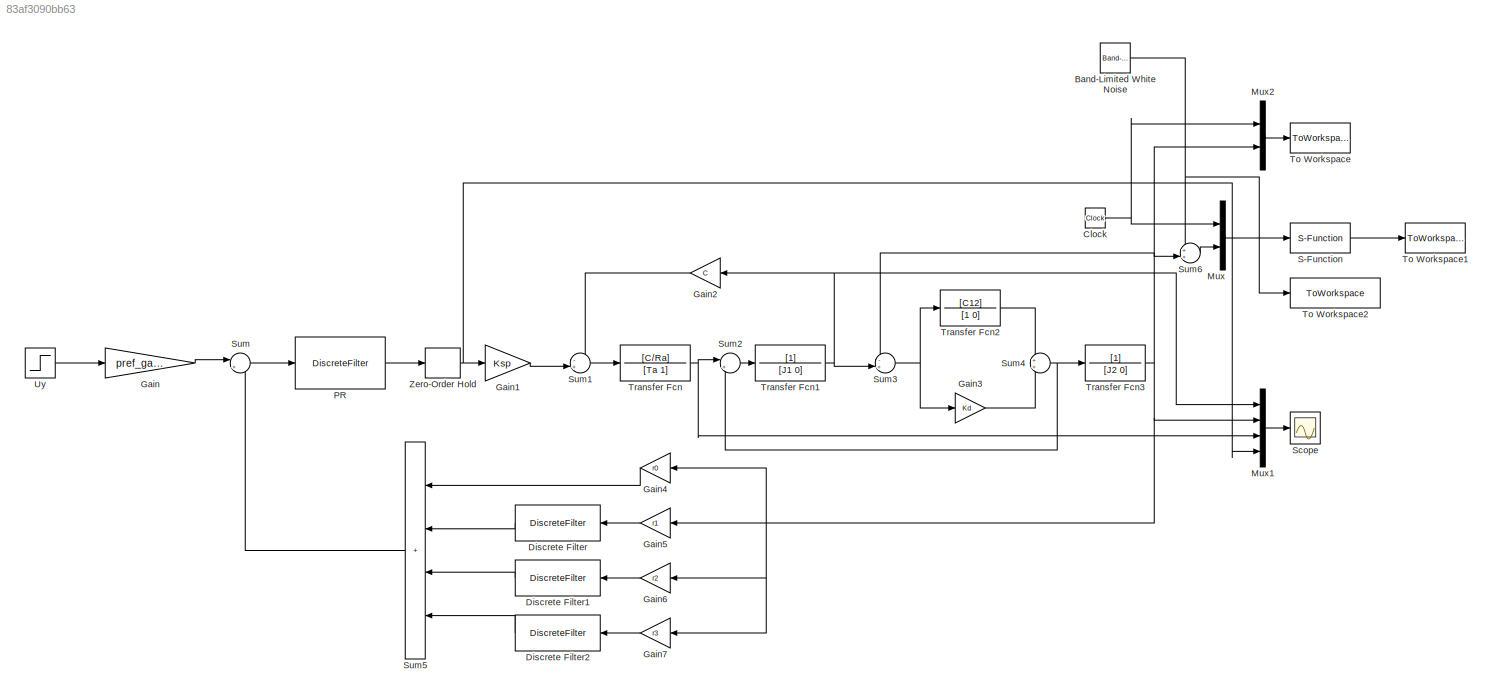
MODEL slx_83af3090bb63
KIND model
CONFIG AbsTol = auto
CONFIG EnableMultiTasking = off
CONFIG FixedStep = Tq
CONFIG MaxStep = auto
CONFIG MinStep = auto
CONFIG RelTol = 1e-3
CONFIG SampleTimeConstraint = Unconstrained
CONFIG SolverName = FixedStepAuto
CONFIG StartTime = 0.0
CONFIG StopTime = 3.0
BLOCK [Reference] Band-Limited White Noise  REF=simulink/Sources/Band-Limited
White Noise
  Ports = [0, 1]
  SourceBlock = simulink/Sources/Band-Limited\nWhite Noise
  SourceProductBaseCode = SL
  SourceType = Band-Limited White Noise.
BLOCK [Clock] Clock
  Decimation = 1
BLOCK [DiscreteFilter] Discrete Filter
  Denominator = [Tq]
  InputPortMap = u0
  Numerator = [1 -1]
  Ports = [1, 1]
  SampleTime = Tq
BLOCK [DiscreteFilter] Discrete Filter1
  Denominator = [Tq^2]
  InputPortMap = u0
  Numerator = [1 -2 1]
  Ports = [1, 1]
  SampleTime = Tq
BLOCK [DiscreteFilter] Discrete Filter2
  Denominator = [Tq^3]
  InputPortMap = u0
  Numerator = [1 -3 3 -1]
  Ports = [1, 1]
  SampleTime = Tq
BLOCK [Gain] Gain
  Gain = pref_gain
BLOCK [Gain] Gain1
  Gain = Ksp
BLOCK [Gain] Gain2
  Gain = C
BLOCK [Gain] Gain3
  Gain = Kd
BLOCK [Gain] Gain4
  Gain = r0
  SampleTime = Tq
BLOCK [Gain] Gain5
  Gain = r1
  SampleTime = Tq
BLOCK [Gain] Gain6
  Gain = r2
  SampleTime = Tq
BLOCK [Gain] Gain7
  Gain = r3
  SampleTime = Tq
BLOCK [Mux] Mux
  DisplayOption = bar
  Inputs = 2
  Ports = [2, 1]
BLOCK [Mux] Mux1
  DisplayOption = bar
  Ports = [4, 1]
BLOCK [Mux] Mux2
  DisplayOption = bar
  Inputs = 2
  Ports = [2, 1]
BLOCK [DiscreteFilter] PR
  Denominator = [(c1+c0*Tq) -c1]
  InputPortMap = u0
  Numerator = [Tq]
  Ports = [1, 1]
  SampleTime = Tq
BLOCK [S-Function] S-Function
  EnableBusSupport = off
  FunctionName = decimate
  Parameters = Tq,dec_factor,Uy
  Ports = [1, 1]
  SFcnIsStateOwnerBlock = off
  SFunctionDeploymentMode = off
BLOCK [Scope] Scope
  Floating = off
  NumInputPorts = 1
  Ports = [1]
  ScopeSpecificationString = Simulink.scopes.TimeScopeBlockCfg('CurrentConfiguration', extmgr.ConfigurationSet(extmgr.Configuration('Core','General UI',true),extmgr.Configuration('Core','Source UI',true),extmgr.Configuration('Sources','WiredSimulink',true,'DataLoggingSaveFormat','StructureWithTime','DataLoggingLimitDataPoints',true,'DataLoggingDecimation','1','DataLoggingDecimateData',true),extmgr.Configuration('Visuals','Tim...<+1705ch>
BLOCK [Sum] Sum
  Inputs = |+-
  Ports = [2, 1]
BLOCK [Sum] Sum1
  Inputs = -+|
  Ports = [2, 1]
BLOCK [Sum] Sum2
  Inputs = |+-
  Ports = [2, 1]
BLOCK [Sum] Sum3
  Inputs = -+|
  Ports = [2, 1]
BLOCK [Sum] Sum4
  Ports = [2, 1]
BLOCK [Sum] Sum5
  IconShape = rectangular
  Inputs = ++++
  Ports = [4, 1]
  SampleTime = Tq
BLOCK [Sum] Sum6
  Inputs = ++|
  Ports = [2, 1]
BLOCK [ToWorkspace] To Workspace
  MaxDataPoints = inf
  Ports = [1]
  SampleTime = Tq
  VariableName = simout
BLOCK [ToWorkspace] To Workspace1
  Decimation = dec_factor
  MaxDataPoints = inf
  Ports = [1]
  SampleTime = Tq
  VariableName = decimated
BLOCK [ToWorkspace] To Workspace2
  MaxDataPoints = inf
  Ports = [1]
  SampleTime = Tq
  VariableName = noisy_signal
BLOCK [TransferFcn] Transfer Fcn
  Denominator = [Ta 1]
  Numerator = [C/Ra]
BLOCK [TransferFcn] Transfer Fcn1
  Denominator = [J1 0]
BLOCK [TransferFcn] Transfer Fcn2
  Denominator = [1 0]
  Numerator = [C12]
BLOCK [TransferFcn] Transfer Fcn3
  Denominator = [J2 0]
BLOCK [Step] Uy
  After = Uy
  SampleTime = 0
  Time = 0
BLOCK [ZeroOrderHold] Zero-Order Hold
  SampleTime = Tq
NET Band-Limited White Noise:1 -> Sum6:1, To Workspace2:1
NET Clock:1 -> Mux2:1, Mux:1
LINE Discrete Filter1:1 -> Sum5:3
LINE Discrete Filter2:1 -> Sum5:4
LINE Discrete Filter:1 -> Sum5:2
LINE Gain1:1 -> Sum1:2
LINE Gain2:1 -> Sum1:1
LINE Gain3:1 -> Sum4:2
LINE Gain4:1 -> Sum5:1
LINE Gain5:1 -> Discrete Filter:1
LINE Gain6:1 -> Discrete Filter1:1
LINE Gain7:1 -> Discrete Filter2:1
LINE Gain:1 -> Sum:1
LINE Mux1:1 -> Scope:1
LINE Mux2:1 -> To Workspace:1
LINE Mux:1 -> S-Function:1
LINE PR:1 -> Zero-Order Hold:1
LINE S-Function:1 -> To Workspace1:1
LINE Sum1:1 -> Transfer Fcn:1
LINE Sum2:1 -> Transfer Fcn1:1
NET Sum3:1 -> Gain3:1, Transfer Fcn2:1
NET Sum4:1 -> Sum2:2, Transfer Fcn3:1
LINE Sum5:1 -> Sum:2
LINE Sum6:1 -> Mux:2
LINE Sum:1 -> PR:1
NET Transfer Fcn1:1 -> Gain2:1, Mux1:1, Sum3:2
LINE Transfer Fcn2:1 -> Sum4:1
NET Transfer Fcn3:1 -> Gain4:1, Gain5:1, Gain6:1, Gain7:1, Mux1:2, Mux2:2, Sum3:1, Sum6:2
NET Transfer Fcn:1 -> Mux1:3, Sum2:1
LINE Uy:1 -> Gain:1
NET Zero-Order Hold:1 -> Gain1:1, Mux1:4
note: NET lines group one-source signal fan-out (src -> all destinations, sorted); 1:1 wires keep LINE
